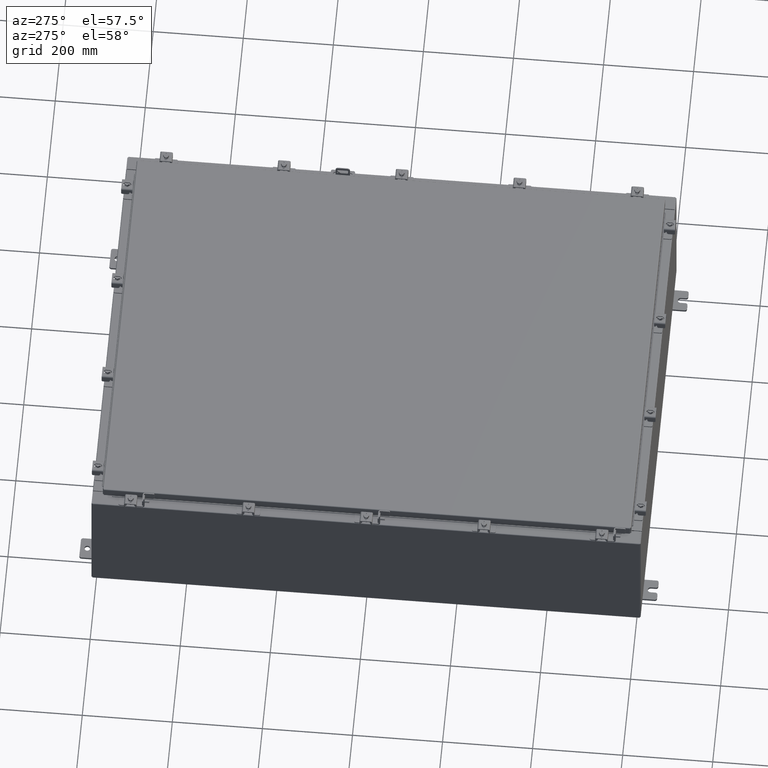
[diagram: clean part render]
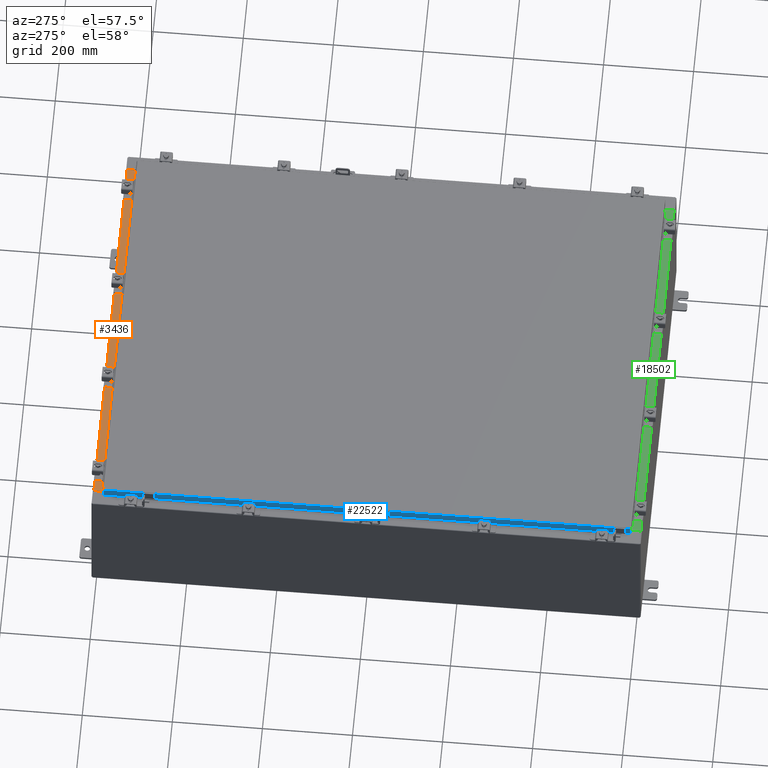
[diagram: same view with three faces highlighted in distinct colors, each labeled with its STEP entity id]
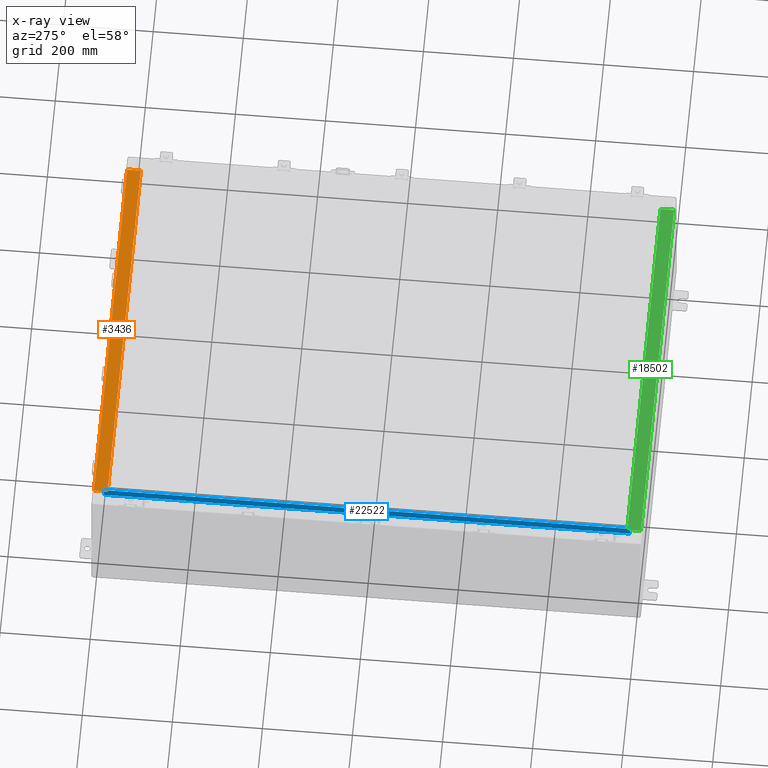
[diagram: x-ray of the same camera — body ghosted, the three highlighted faces saturated]
A machine part, auxiliary view with three faces highlighted in distinct colors.
The next image is the same camera in x-ray (body ghosted, the three faces saturated) — at least one of them is partly hidden behind the body in this view.
Their STEP definitions:

[orange] entity #3436 — the highlighted planar face has unit normal (0, 0, 1).
#255 = EDGE_CURVE ( 'NONE', #13373, #1556, #5261, .T. ) ;
#680 = CARTESIAN_POINT ( 'NONE',  ( 16.63720000000000400, -1.287299999999999400, 6.000000000000001800 ) ) ;
#1556 = VERTEX_POINT ( 'NONE', #22417 ) ;
#1910 = CARTESIAN_POINT ( 'NONE',  ( -16.63719999999999600, -1.287299999999998600, 6.000000000000002700 ) ) ;
#2153 = ORIENTED_EDGE ( 'NONE', *, *, #11759, .F. ) ;
#3436 = ADVANCED_FACE ( 'NONE', ( #13072 ), #9457, .T. ) ;
#5261 = LINE ( 'NONE', #17937, #15800 ) ;
#5870 = LINE ( 'NONE', #23872, #16384 ) ;
#7460 = DIRECTION ( 'NONE',  ( 0.0000000000000000000, -1.000000000000000000, 2.674785894579892700E-015 ) ) ;
#7497 = DIRECTION ( 'NONE',  ( -0.0000000000000000000, -1.000000000000000000, 3.566381192773190000E-015 ) ) ;
#8911 = ORIENTED_EDGE ( 'NONE', *, *, #10010, .T. ) ;
#9298 = ORIENTED_EDGE ( 'NONE', *, *, #255, .F. ) ;
#9457 = PLANE ( 'NONE',  #11345 ) ;
#9483 = VERTEX_POINT ( 'NONE', #11451 ) ;
#10010 = EDGE_CURVE ( 'NONE', #13373, #9483, #5870, .T. ) ;
#10036 = VECTOR ( 'NONE', #15701, 39.37007874015748100 ) ;
#11328 = ORIENTED_EDGE ( 'NONE', *, *, #11541, .F. ) ;
#11345 = AXIS2_PLACEMENT_3D ( 'NONE', #13715, #20034, #7460 ) ;
#11451 = CARTESIAN_POINT ( 'NONE',  ( -16.63719999999999600, -0.08769999999999972300, 5.999999999999999100 ) ) ;
#11502 = VERTEX_POINT ( 'NONE', #1910 ) ;
#11541 = EDGE_CURVE ( 'NONE', #11502, #9483, #26504, .T. ) ;
#11759 = EDGE_CURVE ( 'NONE', #1556, #11502, #26834, .T. ) ;
#13072 = FACE_OUTER_BOUND ( 'NONE', #22142, .T. ) ;
#13373 = VERTEX_POINT ( 'NONE', #17850 ) ;
#13715 = CARTESIAN_POINT ( 'NONE',  ( -2.276882898771239300E-018, 1.610972251716581800E-014, 5.999999999999999100 ) ) ;
#15701 = DIRECTION ( 'NONE',  ( -1.000000000000000000, 0.0000000000000000000, 0.0000000000000000000 ) ) ;
#15800 = VECTOR ( 'NONE', #7497, 39.37007874015748100 ) ;
#16032 = CARTESIAN_POINT ( 'NONE',  ( -16.63719999999999600, -0.07469999999999973900, 5.999999999999999100 ) ) ;
#16384 = VECTOR ( 'NONE', #25971, 39.37007874015748100 ) ;
#16826 = DIRECTION ( 'NONE',  ( -0.0000000000000000000, 1.000000000000000000, -2.674785894579892700E-015 ) ) ;
#17850 = CARTESIAN_POINT ( 'NONE',  ( 16.63720000000000400, -0.08769999999999948700, 5.999999999999999100 ) ) ;
#17937 = CARTESIAN_POINT ( 'NONE',  ( 16.63720000000000400, -1.300299999999999800, 6.000000000000003600 ) ) ;
#20034 = DIRECTION ( 'NONE',  ( 0.0000000000000000000, 2.674785894579892700E-015, 1.000000000000000000 ) ) ;
#20920 = VECTOR ( 'NONE', #16826, 39.37007874015748100 ) ;
#22142 = EDGE_LOOP ( 'NONE', ( #11328, #2153, #9298, #8911 ) ) ;
#22417 = CARTESIAN_POINT ( 'NONE',  ( 16.63720000000000400, -1.287299999999999400, 6.000000000000003600 ) ) ;
#23872 = CARTESIAN_POINT ( 'NONE',  ( -5.156971724347648400E-018, -0.08769999999999972300, 5.999999999999999100 ) ) ;
#25971 = DIRECTION ( 'NONE',  ( -1.000000000000000000, 3.284023746380717400E-017, -8.784060394284559800E-032 ) ) ;
#26504 = LINE ( 'NONE', #16032, #20920 ) ;
#26834 = LINE ( 'NONE', #680, #10036 ) ;

[blue] entity #22522 — the highlighted planar face has unit normal (1, 0, -0).
#9 = LINE ( 'NONE', #11938, #16176 ) ;
#771 = ORIENTED_EDGE ( 'NONE', *, *, #2233, .F. ) ;
#2057 = FACE_OUTER_BOUND ( 'NONE', #13628, .T. ) ;
#2233 = EDGE_CURVE ( 'NONE', #24198, #8920, #15787, .T. ) ;
#2752 = CARTESIAN_POINT ( 'NONE',  ( -17.07799999999999900, -23.09399999999999400, -0.08770000000000007000 ) ) ;
#2761 = ORIENTED_EDGE ( 'NONE', *, *, #11744, .F. ) ;
#2822 = VERTEX_POINT ( 'NONE', #24034 ) ;
#3410 = CARTESIAN_POINT ( 'NONE',  ( -17.07799999999999900, -23.00515786437626200, -0.07469999999999978000 ) ) ;
#4175 = CARTESIAN_POINT ( 'NONE',  ( -17.07799999999998900, 22.25515786437623700, -0.8500000000000026400 ) ) ;
#4567 = VECTOR ( 'NONE', #24473, 39.37007874015748100 ) ;
#4678 = ORIENTED_EDGE ( 'NONE', *, *, #15090, .F. ) ;
#5087 = VECTOR ( 'NONE', #13301, 39.37007874015748100 ) ;
#5840 = EDGE_CURVE ( 'NONE', #8920, #16386, #23451, .T. ) ;
#6192 = ORIENTED_EDGE ( 'NONE', *, *, #13382, .F. ) ;
#6401 = LINE ( 'NONE', #13703, #22512 ) ;
#7861 = EDGE_CURVE ( 'NONE', #24198, #2822, #16136, .T. ) ;
#8346 = CARTESIAN_POINT ( 'NONE',  ( -17.07799999999998900, -22.25515786437626200, -0.8500000000000026400 ) ) ;
#8914 = DIRECTION ( 'NONE',  ( -2.818880942772360100E-015, 0.0000000000000000000, -1.000000000000000000 ) ) ;
#8920 = VERTEX_POINT ( 'NONE', #18037 ) ;
#9736 = DIRECTION ( 'NONE',  ( -2.818880942772360100E-015, 6.982962677686265900E-015, -1.000000000000000000 ) ) ;
#11744 = EDGE_CURVE ( 'NONE', #16386, #18163, #16317, .T. ) ;
#11847 = CARTESIAN_POINT ( 'NONE',  ( -17.07799999999999900, 23.00515786437626200, 2.090458211578980900E-013 ) ) ;
#11938 = CARTESIAN_POINT ( 'NONE',  ( -17.07800000000000300, -23.09399999999999400, -0.8499999999999996400 ) ) ;
#11947 = CARTESIAN_POINT ( 'NONE',  ( -17.07800000000000300, -23.00515786437625800, -0.8499999999999996400 ) ) ;
#12037 = CARTESIAN_POINT ( 'NONE',  ( -17.07799999999999900, 23.00515786437626200, -0.08770000000000007000 ) ) ;
#12275 = VECTOR ( 'NONE', #18135, 39.37007874015748100 ) ;
#13301 = DIRECTION ( 'NONE',  ( -4.379057701015054300E-047, 1.000000000000000000, 1.212498568245375500E-016 ) ) ;
#13382 = EDGE_CURVE ( 'NONE', #18163, #18210, #6401, .T. ) ;
#13628 = EDGE_LOOP ( 'NONE', ( #771, #19684, #4678, #6192, #2761, #17532 ) ) ;
#13703 = CARTESIAN_POINT ( 'NONE',  ( -17.07799999999998900, -22.25515786437625500, -0.8500000000000026400 ) ) ;
#15090 = EDGE_CURVE ( 'NONE', #18210, #2822, #9, .T. ) ;
#15197 = PLANE ( 'NONE',  #18648 ) ;
#15787 = LINE ( 'NONE', #2752, #4567 ) ;
#16136 = LINE ( 'NONE', #11847, #21064 ) ;
#16176 = VECTOR ( 'NONE', #18207, 39.37007874015748100 ) ;
#16317 = LINE ( 'NONE', #21585, #5087 ) ;
#16386 = VERTEX_POINT ( 'NONE', #11947 ) ;
#17532 = ORIENTED_EDGE ( 'NONE', *, *, #5840, .F. ) ;
#18037 = CARTESIAN_POINT ( 'NONE',  ( -17.07799999999999900, -23.00515786437626200, -0.08770000000000007000 ) ) ;
#18135 = DIRECTION ( 'NONE',  ( -2.818880942772360100E-015, 6.982962677686265900E-015, -1.000000000000000000 ) ) ;
#18163 = VERTEX_POINT ( 'NONE', #8346 ) ;
#18207 = DIRECTION ( 'NONE',  ( -4.379057701015054300E-047, 1.000000000000000000, 1.212498568245375500E-016 ) ) ;
#18210 = VERTEX_POINT ( 'NONE', #4175 ) ;
#18648 = AXIS2_PLACEMENT_3D ( 'NONE', #19378, #21532, #8914 ) ;
#19378 = CARTESIAN_POINT ( 'NONE',  ( -17.07799999999999900, -5.837071017217516000E-030, 4.840166239667794100E-014 ) ) ;
#19684 = ORIENTED_EDGE ( 'NONE', *, *, #7861, .T. ) ;
#21064 = VECTOR ( 'NONE', #9736, 39.37007874015748100 ) ;
#21532 = DIRECTION ( 'NONE',  ( 1.000000000000000000, 3.417889107165661600E-031, -2.818880942772360100E-015 ) ) ;
#21585 = CARTESIAN_POINT ( 'NONE',  ( -17.07800000000000300, -23.09399999999999400, -0.8499999999999996400 ) ) ;
#22165 = DIRECTION ( 'NONE',  ( -0.0000000000000000000, 1.000000000000000000, -0.0000000000000000000 ) ) ;
#22512 = VECTOR ( 'NONE', #22165, 39.37007874015748100 ) ;
#22522 = ADVANCED_FACE ( 'NONE', ( #2057 ), #15197, .F. ) ;
#23451 = LINE ( 'NONE', #3410, #12275 ) ;
#24034 = CARTESIAN_POINT ( 'NONE',  ( -17.07800000000000300, 23.00515786437626200, -0.8499999999999940900 ) ) ;
#24198 = VERTEX_POINT ( 'NONE', #12037 ) ;
#24473 = DIRECTION ( 'NONE',  ( 3.417889107165661600E-031, -1.000000000000000000, -9.316371385484559400E-046 ) ) ;

[green] entity #18502 — the highlighted planar face has unit normal (-0, -0, 1).
#87 = ORIENTED_EDGE ( 'NONE', *, *, #15378, .T. ) ;
#1038 = ORIENTED_EDGE ( 'NONE', *, *, #6887, .F. ) ;
#1143 = CARTESIAN_POINT ( 'NONE',  ( 16.63720000000000400, -1.300299999999999800, 6.000000000000003600 ) ) ;
#2321 = ORIENTED_EDGE ( 'NONE', *, *, #26825, .F. ) ;
#2976 = CARTESIAN_POINT ( 'NONE',  ( -2.276882898771239300E-018, 1.610972251716581800E-014, 5.999999999999999100 ) ) ;
#3655 = VECTOR ( 'NONE', #4558, 39.37007874015748100 ) ;
#4401 = VERTEX_POINT ( 'NONE', #11853 ) ;
#4558 = DIRECTION ( 'NONE',  ( -0.0000000000000000000, 1.000000000000000000, -2.674785894579892700E-015 ) ) ;
#5100 = DIRECTION ( 'NONE',  ( 0.0000000000000000000, -1.000000000000000000, 2.674785894579892700E-015 ) ) ;
#5130 = LINE ( 'NONE', #20201, #9389 ) ;
#5829 = CARTESIAN_POINT ( 'NONE',  ( -16.63719999999999600, -1.287299999999998600, 6.000000000000002700 ) ) ;
#6629 = LINE ( 'NONE', #17059, #22052 ) ;
#6887 = EDGE_CURVE ( 'NONE', #13523, #21429, #16202, .T. ) ;
#7613 = DIRECTION ( 'NONE',  ( -1.000000000000000000, 0.0000000000000000000, 0.0000000000000000000 ) ) ;
#8941 = CARTESIAN_POINT ( 'NONE',  ( 16.63720000000000400, -0.08769999999999948700, 5.999999999999999100 ) ) ;
#9389 = VECTOR ( 'NONE', #7613, 39.37007874015748100 ) ;
#10384 = VERTEX_POINT ( 'NONE', #8941 ) ;
#11773 = FACE_OUTER_BOUND ( 'NONE', #22125, .T. ) ;
#11853 = CARTESIAN_POINT ( 'NONE',  ( 16.63720000000000400, -1.287299999999999400, 6.000000000000003600 ) ) ;
#12336 = LINE ( 'NONE', #1143, #24178 ) ;
#12821 = DIRECTION ( 'NONE',  ( -1.000000000000000000, 3.284023746380717400E-017, -8.784060394284559800E-032 ) ) ;
#13468 = PLANE ( 'NONE',  #18592 ) ;
#13523 = VERTEX_POINT ( 'NONE', #5829 ) ;
#15079 = CARTESIAN_POINT ( 'NONE',  ( -16.63719999999999600, -0.07469999999999973900, 5.999999999999999100 ) ) ;
#15378 = EDGE_CURVE ( 'NONE', #10384, #21429, #6629, .T. ) ;
#15882 = DIRECTION ( 'NONE',  ( -0.0000000000000000000, -1.000000000000000000, 3.566381192773190000E-015 ) ) ;
#16202 = LINE ( 'NONE', #15079, #3655 ) ;
#17031 = ORIENTED_EDGE ( 'NONE', *, *, #19947, .F. ) ;
#17059 = CARTESIAN_POINT ( 'NONE',  ( -5.156971724347648400E-018, -0.08769999999999972300, 5.999999999999999100 ) ) ;
#17697 = DIRECTION ( 'NONE',  ( 0.0000000000000000000, 2.674785894579892700E-015, 1.000000000000000000 ) ) ;
#18502 = ADVANCED_FACE ( 'NONE', ( #11773 ), #13468, .T. ) ;
#18592 = AXIS2_PLACEMENT_3D ( 'NONE', #2976, #17697, #5100 ) ;
#19947 = EDGE_CURVE ( 'NONE', #4401, #13523, #5130, .T. ) ;
#20201 = CARTESIAN_POINT ( 'NONE',  ( 16.63720000000000400, -1.287299999999999400, 6.000000000000001800 ) ) ;
#21429 = VERTEX_POINT ( 'NONE', #21496 ) ;
#21496 = CARTESIAN_POINT ( 'NONE',  ( -16.63719999999999600, -0.08769999999999972300, 5.999999999999999100 ) ) ;
#22052 = VECTOR ( 'NONE', #12821, 39.37007874015748100 ) ;
#22125 = EDGE_LOOP ( 'NONE', ( #1038, #17031, #2321, #87 ) ) ;
#24178 = VECTOR ( 'NONE', #15882, 39.37007874015748100 ) ;
#26825 = EDGE_CURVE ( 'NONE', #10384, #4401, #12336, .T. ) ;